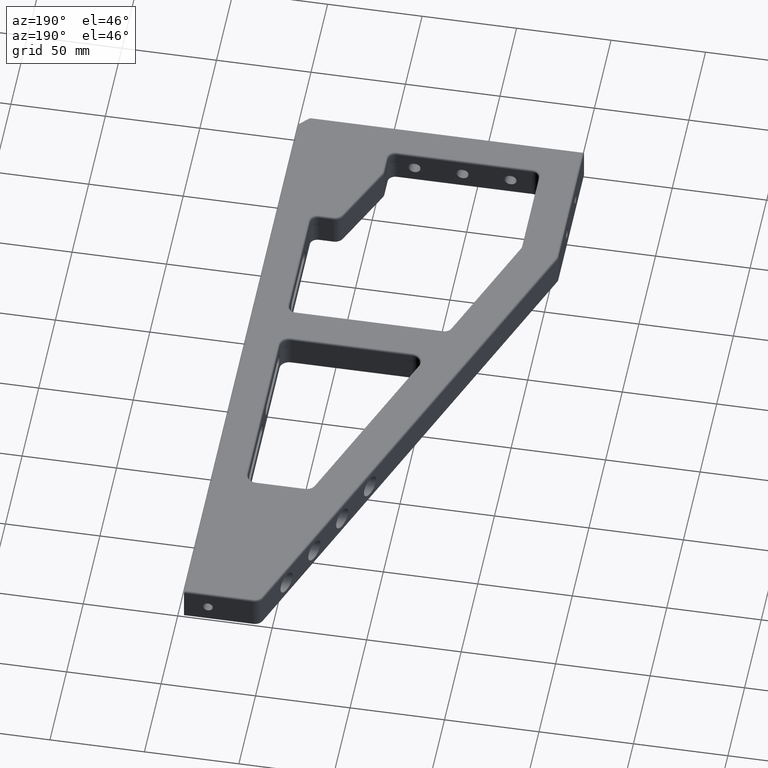
[diagram: clean part render]
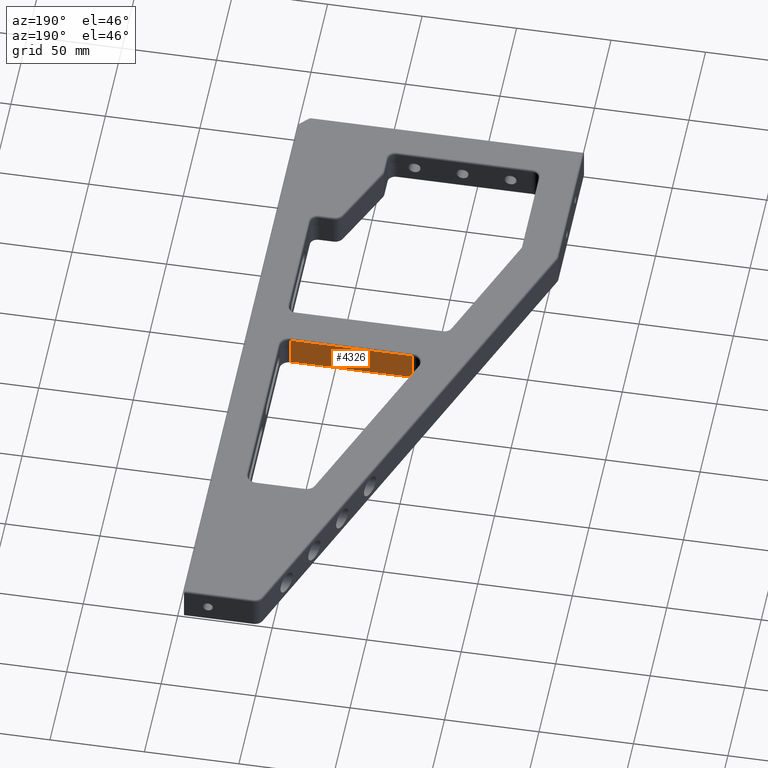
[diagram: same view with one face highlighted and labeled with its STEP entity id]
A machine part, auxiliary view. The second image highlights one B-rep face of the part: STEP entity #4326.
In plain terms, the highlighted planar face has unit normal (-0, -1, 0).
Its self-contained STEP definition (entity closure, byte-faithful):
#41 = VECTOR ( 'NONE', #5284, 1000.000000000000000 ) ;
#80 = LINE ( 'NONE', #1064, #1087 ) ;
#204 = DIRECTION ( 'NONE',  ( 1.000000000000000000, -3.611669139550354700E-016, 0.0000000000000000000 ) ) ;
#220 = CARTESIAN_POINT ( 'NONE',  ( 127.0000000000000300, 159.9999999999999700, 17.00000000000001400 ) ) ;
#385 = CARTESIAN_POINT ( 'NONE',  ( 62.56308649022202000, 160.0000000000000000, 1.000000000000000900 ) ) ;
#432 = DIRECTION ( 'NONE',  ( 1.000000000000000000, -3.611669139550354700E-016, 0.0000000000000000000 ) ) ;
#448 = EDGE_CURVE ( 'NONE', #4131, #5011, #3145, .T. ) ;
#614 = ORIENTED_EDGE ( 'NONE', *, *, #2019, .T. ) ;
#657 = CARTESIAN_POINT ( 'NONE',  ( 127.0000000000000300, 159.9999999999999700, 0.0000000000000000000 ) ) ;
#727 = FACE_OUTER_BOUND ( 'NONE', #3303, .T. ) ;
#1019 = CARTESIAN_POINT ( 'NONE',  ( 62.56308649022202000, 160.0000000000000000, 18.00000000000001400 ) ) ;
#1064 = CARTESIAN_POINT ( 'NONE',  ( 127.0000000000000300, 159.9999999999999700, 17.00000000000001400 ) ) ;
#1087 = VECTOR ( 'NONE', #204, 1000.000000000000000 ) ;
#1463 = CARTESIAN_POINT ( 'NONE',  ( 132.0000000000000300, 159.9999999999999700, 0.0000000000000000000 ) ) ;
#1533 = DIRECTION ( 'NONE',  ( -0.0000000000000000000, -0.0000000000000000000, -1.000000000000000000 ) ) ;
#1681 = EDGE_CURVE ( 'NONE', #4348, #4747, #80, .T. ) ;
#1968 = LINE ( 'NONE', #657, #5422 ) ;
#2019 = EDGE_CURVE ( 'NONE', #4747, #4131, #1968, .T. ) ;
#3015 = DIRECTION ( 'NONE',  ( -3.611669139550354700E-016, -1.000000000000000000, 0.0000000000000000000 ) ) ;
#3057 = CARTESIAN_POINT ( 'NONE',  ( 132.0000000000000300, 159.9999999999999700, 1.000000000000000900 ) ) ;
#3129 = ORIENTED_EDGE ( 'NONE', *, *, #448, .T. ) ;
#3145 = LINE ( 'NONE', #3057, #41 ) ;
#3303 = EDGE_LOOP ( 'NONE', ( #614, #3129, #5087, #4947 ) ) ;
#3431 = AXIS2_PLACEMENT_3D ( 'NONE', #1463, #3015, #432 ) ;
#3488 = VECTOR ( 'NONE', #4497, 1000.000000000000000 ) ;
#3612 = CARTESIAN_POINT ( 'NONE',  ( 127.0000000000000300, 159.9999999999999700, 1.000000000000000900 ) ) ;
#3625 = LINE ( 'NONE', #1019, #3488 ) ;
#4131 = VERTEX_POINT ( 'NONE', #3612 ) ;
#4139 = EDGE_CURVE ( 'NONE', #5011, #4348, #3625, .T. ) ;
#4326 = ADVANCED_FACE ( 'NONE', ( #727 ), #5193, .F. ) ;
#4348 = VERTEX_POINT ( 'NONE', #5210 ) ;
#4497 = DIRECTION ( 'NONE',  ( 0.0000000000000000000, 0.0000000000000000000, 1.000000000000000000 ) ) ;
#4747 = VERTEX_POINT ( 'NONE', #220 ) ;
#4947 = ORIENTED_EDGE ( 'NONE', *, *, #1681, .T. ) ;
#5011 = VERTEX_POINT ( 'NONE', #385 ) ;
#5087 = ORIENTED_EDGE ( 'NONE', *, *, #4139, .T. ) ;
#5193 = PLANE ( 'NONE',  #3431 ) ;
#5210 = CARTESIAN_POINT ( 'NONE',  ( 62.56308649022202000, 160.0000000000000000, 17.00000000000001400 ) ) ;
#5284 = DIRECTION ( 'NONE',  ( -1.000000000000000000, 3.611669139550354700E-016, -0.0000000000000000000 ) ) ;
#5422 = VECTOR ( 'NONE', #1533, 1000.000000000000000 ) ;